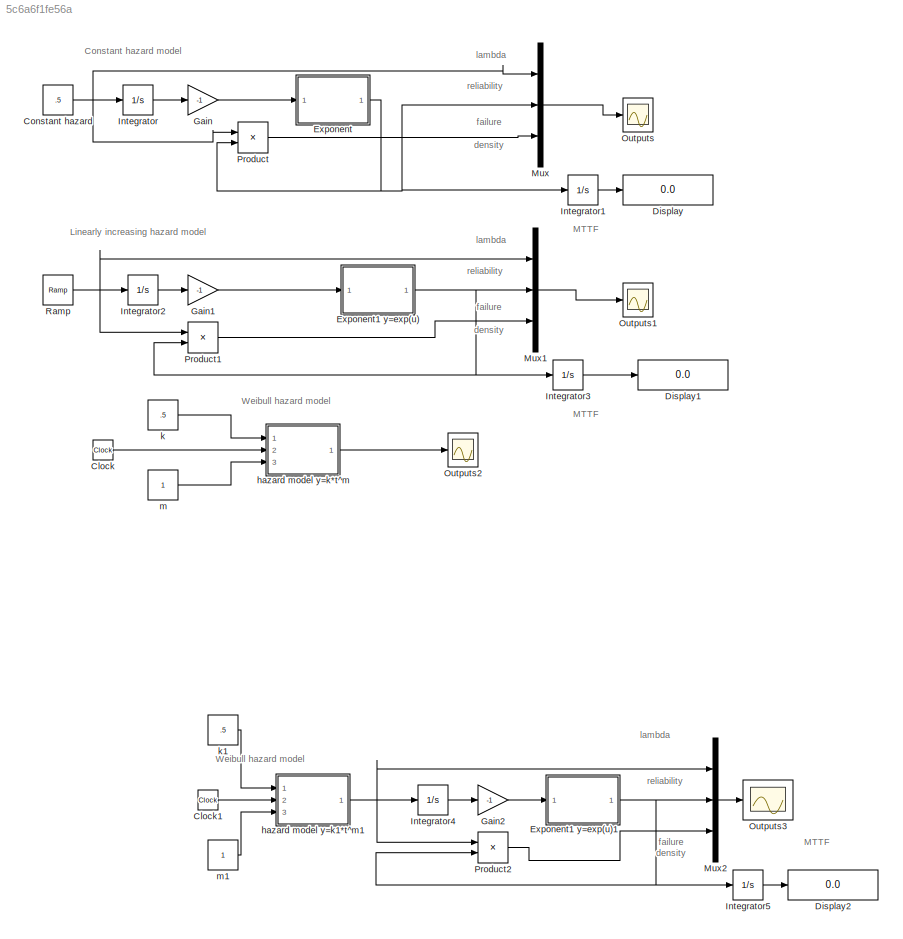
MODEL slx_5c6a6f1fe56a
KIND model
BLOCK [Clock] Clock
BLOCK [Clock] Clock1
BLOCK [Constant] Constant hazard
  Value = .5
BLOCK [Display] Display
  Decimation = 1
  Ports = [1]
BLOCK [Display] Display1
  Decimation = 1
  Ports = [1]
BLOCK [Display] Display2
  Decimation = 1
  Ports = [1]
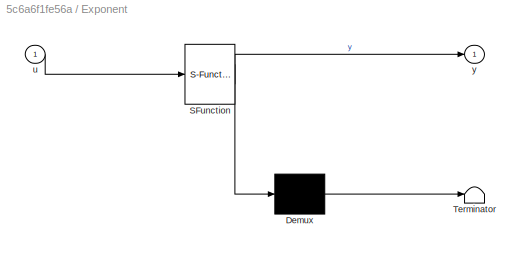
BLOCK [SubSystem] Exponent
  ErrorFcn = Stateflow.Translate.translate
  PermitHierarchicalResolution = ExplicitOnly
  Ports = [1, 1]
  RequestExecContextInheritance = off
  SFBlockType = MATLAB Function
  TreatAsAtomicUnit = on
BLOCK [Demux] Exponent/ Demux 
  Outputs = 1
  Ports = [1, 1]
BLOCK [S-Function] Exponent/ SFunction 
  EnableBusSupport = on
  FunctionName = sf_sfun
  PortCounts = [1 2]
  Ports = [1, 2]
  Tag = Stateflow S-Function hazard_model 2
BLOCK [Terminator] Exponent/ Terminator 
BLOCK [Inport] Exponent/u
  IconDisplay = Port number
BLOCK [Outport] Exponent/y
  IconDisplay = Port number
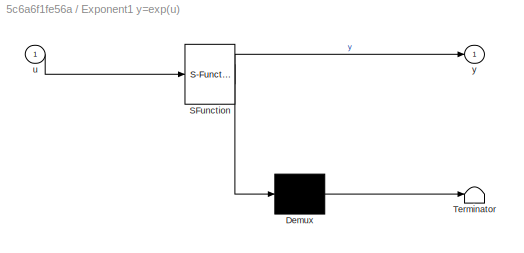
BLOCK [SubSystem] Exponent1 y=exp(u)
  ErrorFcn = Stateflow.Translate.translate
  PermitHierarchicalResolution = ExplicitOnly
  Ports = [1, 1]
  RequestExecContextInheritance = off
  SFBlockType = MATLAB Function
  TreatAsAtomicUnit = on
BLOCK [Demux] Exponent1 y=exp(u)/ Demux 
  Outputs = 1
  Ports = [1, 1]
BLOCK [S-Function] Exponent1 y=exp(u)/ SFunction 
  EnableBusSupport = on
  FunctionName = sf_sfun
  PortCounts = [1 2]
  Ports = [1, 2]
  Tag = Stateflow S-Function hazard_model 1
BLOCK [Terminator] Exponent1 y=exp(u)/ Terminator 
BLOCK [Inport] Exponent1 y=exp(u)/u
  IconDisplay = Port number
BLOCK [Outport] Exponent1 y=exp(u)/y
  IconDisplay = Port number
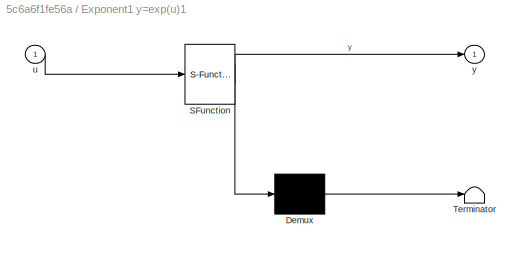
BLOCK [SubSystem] Exponent1 y=exp(u)1
  ErrorFcn = Stateflow.Translate.translate
  PermitHierarchicalResolution = ExplicitOnly
  Ports = [1, 1]
  RequestExecContextInheritance = off
  SFBlockType = MATLAB Function
  TreatAsAtomicUnit = on
BLOCK [Demux] Exponent1 y=exp(u)1/ Demux 
  Outputs = 1
  Ports = [1, 1]
BLOCK [S-Function] Exponent1 y=exp(u)1/ SFunction 
  EnableBusSupport = on
  FunctionName = sf_sfun
  PortCounts = [1 2]
  Ports = [1, 2]
  Tag = Stateflow S-Function hazard_model 5
BLOCK [Terminator] Exponent1 y=exp(u)1/ Terminator 
BLOCK [Inport] Exponent1 y=exp(u)1/u
  IconDisplay = Port number
BLOCK [Outport] Exponent1 y=exp(u)1/y
  IconDisplay = Port number
BLOCK [Gain] Gain
  Gain = -1
  OutDataTypeStr = Inherit: Inherit via internal rule
  ParamDataTypeStr = Inherit: Inherit via internal rule
  SaturateOnIntegerOverflow = off
BLOCK [Gain] Gain1
  Gain = -1
  OutDataTypeStr = Inherit: Inherit via internal rule
  ParamDataTypeStr = Inherit: Inherit via internal rule
  SaturateOnIntegerOverflow = off
BLOCK [Gain] Gain2
  Gain = -1
  OutDataTypeStr = Inherit: Inherit via internal rule
  ParamDataTypeStr = Inherit: Inherit via internal rule
  SaturateOnIntegerOverflow = off
BLOCK [Integrator] Integrator
  Ports = [1, 1]
BLOCK [Integrator] Integrator1
  Ports = [1, 1]
BLOCK [Integrator] Integrator2
  Ports = [1, 1]
BLOCK [Integrator] Integrator3
  Ports = [1, 1]
BLOCK [Integrator] Integrator4
  Ports = [1, 1]
BLOCK [Integrator] Integrator5
  Ports = [1, 1]
BLOCK [Mux] Mux
  DisplayOption = bar
  Inputs = 3
  Ports = [3, 1]
BLOCK [Mux] Mux1
  DisplayOption = bar
  Inputs = 3
  Ports = [3, 1]
BLOCK [Mux] Mux2
  DisplayOption = bar
  Inputs = 3
  Ports = [3, 1]
BLOCK [Scope] Outputs
  Floating = off
  NumInputPorts = 1
  Ports = [1]
  ShowLegends = off
  YMax = 1.1
  YMin = 0
BLOCK [Scope] Outputs1
  Floating = off
  NumInputPorts = 1
  Ports = [1]
  SaveName = ScopeData1
  ShowLegends = off
  YMax = 1.12
  YMin = 0
BLOCK [Scope] Outputs2
  Floating = off
  NumInputPorts = 1
  Ports = [1]
  SaveName = ScopeData2
  ShowLegends = off
  YMax = 2
  YMin = 0
BLOCK [Scope] Outputs3
  Floating = off
  NumInputPorts = 1
  Ports = [1]
  SaveName = ScopeData3
  ShowLegends = off
  YMax = 1.12
  YMin = 0
BLOCK [Product] Product
  InputSameDT = off
  OutDataTypeStr = Inherit: Inherit via internal rule
  Ports = [2, 1]
  RndMeth = Floor
  SaturateOnIntegerOverflow = off
BLOCK [Product] Product1
  InputSameDT = off
  OutDataTypeStr = Inherit: Inherit via internal rule
  Ports = [2, 1]
  RndMeth = Floor
  SaturateOnIntegerOverflow = off
BLOCK [Product] Product2
  InputSameDT = off
  OutDataTypeStr = Inherit: Inherit via internal rule
  Ports = [2, 1]
  RndMeth = Floor
  SaturateOnIntegerOverflow = off
BLOCK [Reference] Ramp  REF=simulink/Sources/Ramp
  Ports = [0, 1]
  SourceBlock = simulink/Sources/Ramp
  SourceType = Ramp
  VectorParams1D = on
  X0 = 0
  slope = .5
  start = 0
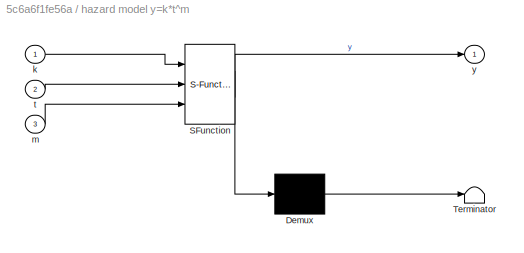
BLOCK [SubSystem] hazard model y=k*t^m
  ErrorFcn = Stateflow.Translate.translate
  PermitHierarchicalResolution = ExplicitOnly
  Ports = [3, 1]
  RequestExecContextInheritance = off
  SFBlockType = MATLAB Function
  TreatAsAtomicUnit = on
BLOCK [Demux] hazard model y=k*t^m/ Demux 
  Outputs = 1
  Ports = [1, 1]
BLOCK [S-Function] hazard model y=k*t^m/ SFunction 
  EnableBusSupport = on
  FunctionName = sf_sfun
  PortCounts = [3 2]
  Ports = [3, 2]
  Tag = Stateflow S-Function hazard_model 3
BLOCK [Terminator] hazard model y=k*t^m/ Terminator 
BLOCK [Inport] hazard model y=k*t^m/k
  IconDisplay = Port number
BLOCK [Inport] hazard model y=k*t^m/m
  IconDisplay = Port number
  Port = 3
BLOCK [Inport] hazard model y=k*t^m/t
  IconDisplay = Port number
  Port = 2
BLOCK [Outport] hazard model y=k*t^m/y
  IconDisplay = Port number
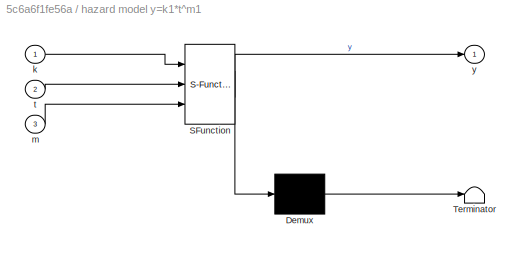
BLOCK [SubSystem] hazard model y=k1*t^m1
  ErrorFcn = Stateflow.Translate.translate
  PermitHierarchicalResolution = ExplicitOnly
  Ports = [3, 1]
  RequestExecContextInheritance = off
  SFBlockType = MATLAB Function
  TreatAsAtomicUnit = on
BLOCK [Demux] hazard model y=k1*t^m1/ Demux 
  Outputs = 1
  Ports = [1, 1]
BLOCK [S-Function] hazard model y=k1*t^m1/ SFunction 
  EnableBusSupport = on
  FunctionName = sf_sfun
  PortCounts = [3 2]
  Ports = [3, 2]
  Tag = Stateflow S-Function hazard_model 4
BLOCK [Terminator] hazard model y=k1*t^m1/ Terminator 
BLOCK [Inport] hazard model y=k1*t^m1/k
  IconDisplay = Port number
BLOCK [Inport] hazard model y=k1*t^m1/m
  IconDisplay = Port number
  Port = 3
BLOCK [Inport] hazard model y=k1*t^m1/t
  IconDisplay = Port number
  Port = 2
BLOCK [Outport] hazard model y=k1*t^m1/y
  IconDisplay = Port number
BLOCK [Constant] k
  Value = .5
BLOCK [Constant] k1
  Value = .5
BLOCK [Constant] m
BLOCK [Constant] m1
ANNOTATION (root): Constant hazard model
ANNOTATION (root): Linearly increasing hazard model
ANNOTATION (root): MTTF
ANNOTATION (root): Weibull hazard model
ANNOTATION (root): failure density
ANNOTATION (root): lambda
ANNOTATION (root): reliability
LINE Clock1:1 -> hazard model y=k1*t^m1:2
LINE Clock:1 -> hazard model y=k*t^m:2
NET Constant hazard:1 -> Integrator:1, Mux:1, Product:1
NET Exponent1 y=exp(u)1:1 -> Integrator5:1, Mux2:2, Product2:2
NET Exponent1 y=exp(u):1 -> Integrator3:1, Mux1:2, Product1:2
NET Exponent:1 -> Integrator1:1, Mux:2, Product:2
LINE Gain1:1 -> Exponent1 y=exp(u):1
LINE Gain2:1 -> Exponent1 y=exp(u)1:1
LINE Gain:1 -> Exponent:1
LINE Integrator1:1 -> Display:1
LINE Integrator2:1 -> Gain1:1
LINE Integrator3:1 -> Display1:1
LINE Integrator4:1 -> Gain2:1
LINE Integrator5:1 -> Display2:1
LINE Integrator:1 -> Gain:1
LINE Mux1:1 -> Outputs1:1
LINE Mux2:1 -> Outputs3:1
LINE Mux:1 -> Outputs:1
LINE Product1:1 -> Mux1:3
LINE Product2:1 -> Mux2:3
LINE Product:1 -> Mux:3
NET Ramp:1 -> Integrator2:1, Mux1:1, Product1:1
LINE hazard model y=k*t^m:1 -> Outputs2:1
NET hazard model y=k1*t^m1:1 -> Integrator4:1, Mux2:1, Product2:1
LINE k1:1 -> hazard model y=k1*t^m1:1
LINE k:1 -> hazard model y=k*t^m:1
LINE m1:1 -> hazard model y=k1*t^m1:3
LINE m:1 -> hazard model y=k*t^m:3
note: NET lines group one-source signal fan-out (src -> all destinations, sorted); 1:1 wires keep LINE
